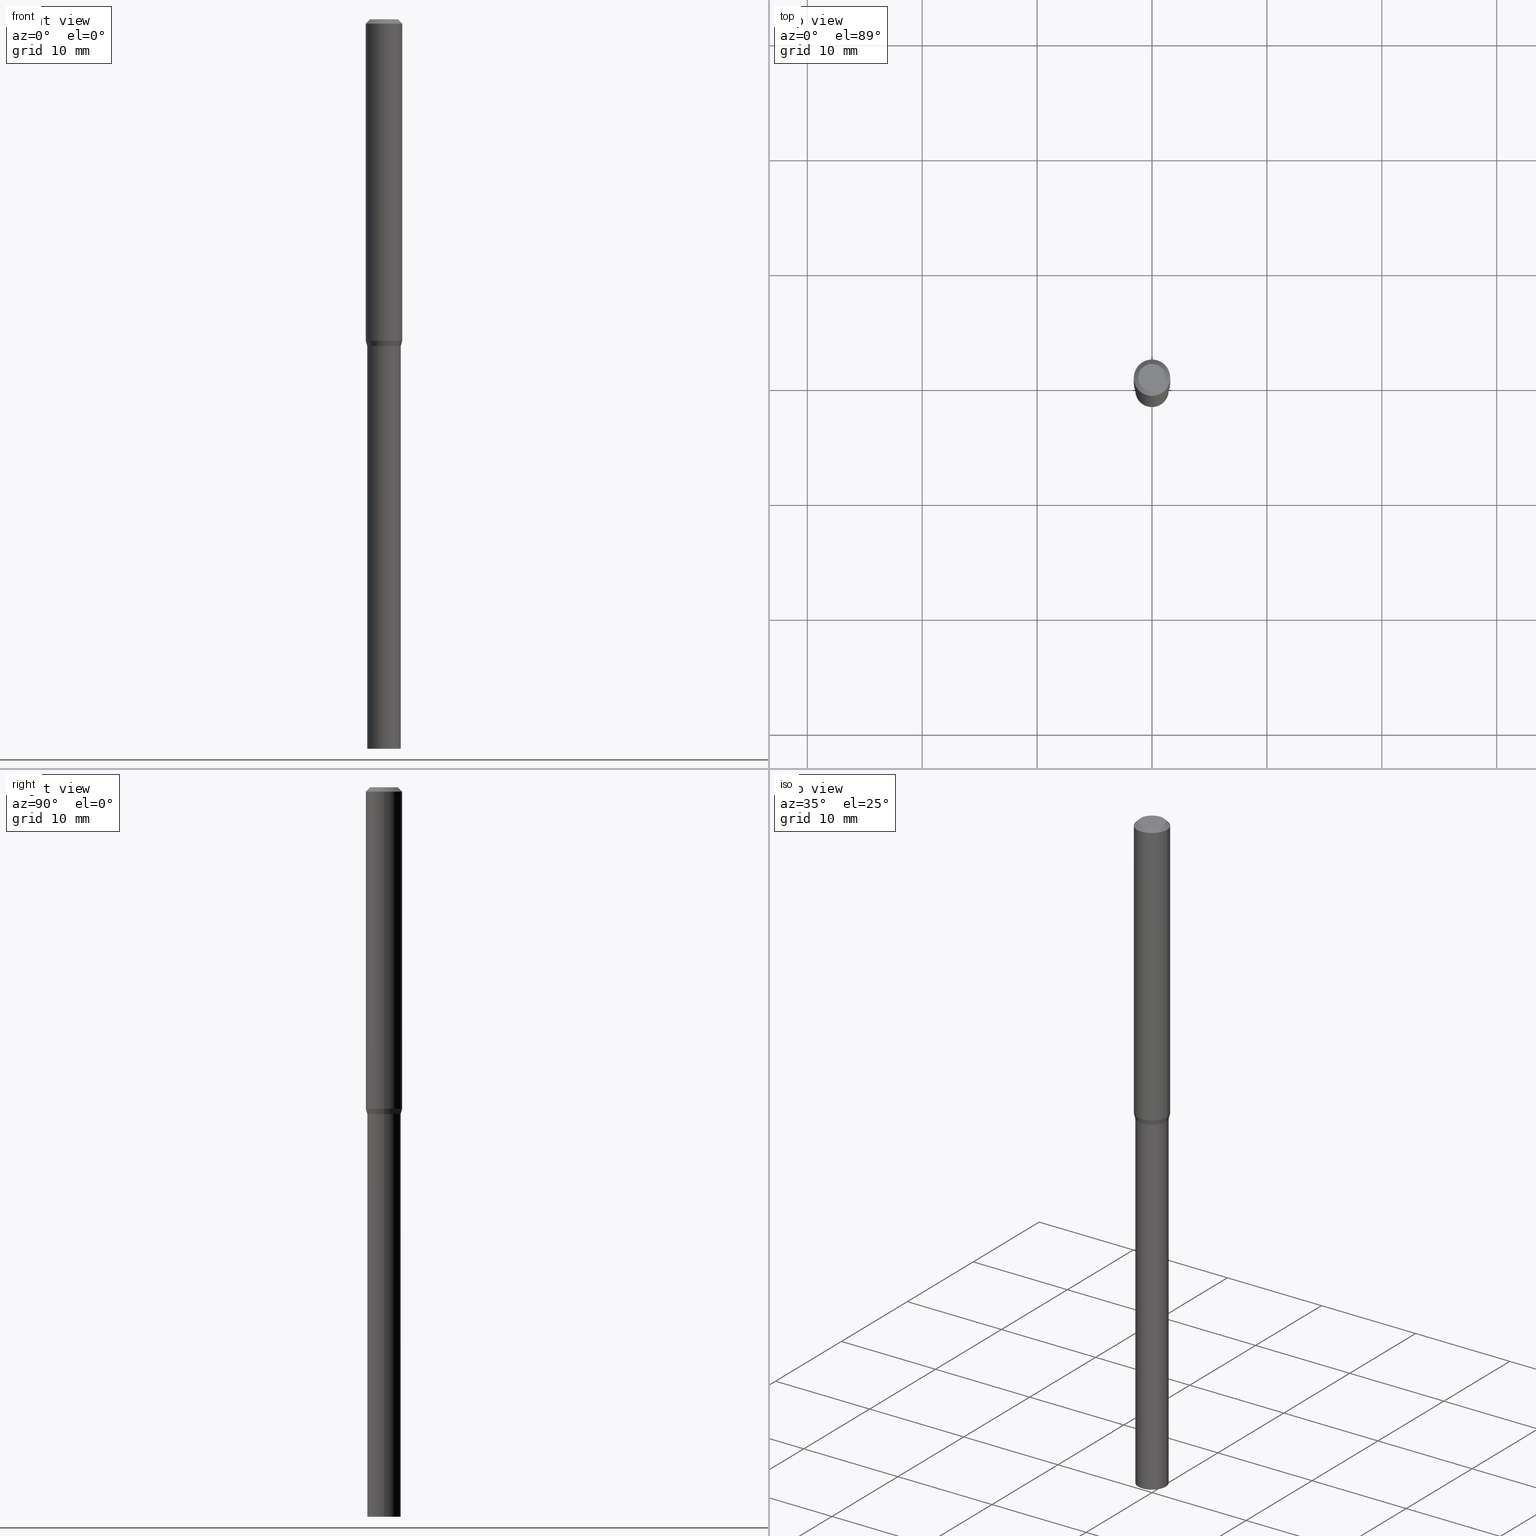
[diagram: canonical four-view strip — front | top / right | iso, engineering-drawing reading convention]
A machine part, canonical four-view strip (front | top / right | iso — engineering-drawing reading convention). The complete STEP part file that produces these views, byte-faithful:
ISO-10303-21;
HEADER;
FILE_DESCRIPTION (( 'STEP AP203' ),
    '1' );
FILE_NAME ('01309.STEP',
    '2024-03-20T01:21:07',
    ( '' ),
    ( '' ),
    'SwSTEP 2.0',
    'SolidWorks 2023',
    '' );
FILE_SCHEMA (( 'CONFIG_CONTROL_DESIGN' ));
ENDSEC;

DATA;
#1 = CARTESIAN_POINT ( 'NONE',  ( 0.05750000000000000250, -4.311979453471284209E-15, -1.120000000000000329 ) ) ;
#2 = CARTESIAN_POINT ( 'NONE',  ( 3.668203209277705088E-31, -5.237222008264718399E-17, -0.01499999999999999944 ) ) ;
#3 = DATE_AND_TIME ( #72, #363 ) ;
#4 = DIRECTION ( 'NONE',  ( 0.000000000000000000, 0.000000000000000000, 1.000000000000000000 ) ) ;
#5 = DIRECTION ( 'NONE',  ( -2.445468806185136877E-29, 3.491481338843145188E-15, 1.000000000000000000 ) ) ;
#6 = CARTESIAN_POINT ( 'NONE',  ( 6.113672015462842613E-29, -8.728703347107864943E-15, -2.500000000000000000 ) ) ;
#7 = CARTESIAN_POINT ( 'NONE',  ( -0.05750000000000000250, -5.911019150244036990E-15, -1.120000000000000329 ) ) ;
#8 = EDGE_CURVE ( 'NONE', #282, #103, #243, .T. ) ;
#9 = CARTESIAN_POINT ( 'NONE',  ( 2.738925062927354020E-29, -3.910459099504324188E-15, -1.120000000000000329 ) ) ;
#10 = VECTOR ( 'NONE', #343, 39.37007874015748143 ) ;
#11 = CARTESIAN_POINT ( 'NONE',  ( 3.668203209277705088E-31, -5.237222008264718399E-17, -0.01499999999999999944 ) ) ;
#12 = CARTESIAN_POINT ( 'NONE',  ( -0.05750000000000005801, -3.501897026442265824E-15, -1.120000000000000329 ) ) ;
#13 = EDGE_CURVE ( 'NONE', #244, #164, #320, .T. ) ;
#14 = CALENDAR_DATE ( 2024, 19, 3 ) ;
#15 = APPLICATION_CONTEXT ( 'configuration controlled 3d designs of mechanical parts and assemblies' ) ;
#16 = ORIENTED_EDGE ( 'NONE', *, *, #230, .F. ) ;
#17 = ORIENTED_EDGE ( 'NONE', *, *, #66, .F. ) ;
#18 = CC_DESIGN_DATE_AND_TIME_ASSIGNMENT ( #299, #365, ( #277 ) ) ;
#19 = VERTEX_POINT ( 'NONE', #454 ) ;
#20 = ORIENTED_EDGE ( 'NONE', *, *, #51, .F. ) ;
#21 = CARTESIAN_POINT ( 'NONE',  ( 2.738925062927354020E-29, -3.910459099504324188E-15, -1.120000000000000329 ) ) ;
#22 = EDGE_LOOP ( 'NONE', ( #248, #134, #64, #318 ) ) ;
#23 = ADVANCED_FACE ( 'NONE', ( #298 ), #36, .T. ) ;
#24 = ORIENTED_EDGE ( 'NONE', *, *, #357, .F. ) ;
#25 = APPROVAL_DATE_TIME ( #3, #268 ) ;
#26 = AXIS2_PLACEMENT_3D ( 'NONE', #65, #423, #301 ) ;
#27 = LOCAL_TIME ( 21, 21, 7.000000000000000000, #144 ) ;
#28 = CARTESIAN_POINT ( 'NONE',  ( -0.05700000000000000205, -3.505449740121067117E-15, -1.120000000000000329 ) ) ;
#29 = PERSON_AND_ORGANIZATION ( #342, #265 ) ;
#30 = PERSON_AND_ORGANIZATION_ROLE ( 'design_owner' ) ;
#31 = FACE_OUTER_BOUND ( 'NONE', #59, .T. ) ;
#32 = PLANE ( 'NONE',  #125 ) ;
#33 = CYLINDRICAL_SURFACE ( 'NONE', #420, 0.05750000000000000250 ) ;
#34 = APPROVAL_ROLE ( '' ) ;
#35 = FACE_OUTER_BOUND ( 'NONE', #362, .T. ) ;
#36 = CONICAL_SURFACE ( 'NONE', #308, 0.05700000000000000205, 0.7853981633974739252 ) ;
#37 = CIRCLE ( 'NONE', #233, 0.05750000000000000250 ) ;
#38 = CARTESIAN_POINT ( 'NONE',  ( 0.05750000000000005801, -4.311979453471284998E-15, -1.120000000000000329 ) ) ;
#39 = COORDINATED_UNIVERSAL_TIME_OFFSET ( 5, 0, .BEHIND. ) ;
#40 = DIRECTION ( 'NONE',  ( 1.000000000000000000, -6.982962677686266711E-15, 0.000000000000000000 ) ) ;
#41 = CYLINDRICAL_SURFACE ( 'NONE', #421, 0.05750000000000000250 ) ;
#42 = APPLICATION_CONTEXT ( 'configuration controlled 3d designs of mechanical parts and assemblies' ) ;
#43 = DIRECTION ( 'NONE',  ( -2.445468806185136597E-29, 3.491481338843145583E-15, 1.000000000000000000 ) ) ;
#44 = LINE ( 'NONE', #82, #338 ) ;
#45 = LINE ( 'NONE', #270, #108 ) ;
#46 = ADVANCED_FACE ( 'NONE', ( #284 ), #33, .T. ) ;
#47 = DATE_AND_TIME ( #14, #355 ) ;
#48 = AXIS2_PLACEMENT_3D ( 'NONE', #432, #456, #367 ) ;
#49 = CARTESIAN_POINT ( 'NONE',  ( 0.000000000000000000, 0.000000000000000000, 0.000000000000000000 ) ) ;
#50 = AXIS2_PLACEMENT_3D ( 'NONE', #55, #340, #375 ) ;
#51 = EDGE_CURVE ( 'NONE', #19, #459, #69, .T. ) ;
#52 = DIRECTION ( 'NONE',  ( 1.000000000000000000, -6.982962677686266711E-15, 4.876176775795935793E-29 ) ) ;
#53 = CARTESIAN_POINT ( 'NONE',  ( -0.06250000000000000000, -3.401217960903056063E-15, -1.101339745962156336 ) ) ;
#54 = FACE_OUTER_BOUND ( 'NONE', #451, .T. ) ;
#55 = CARTESIAN_POINT ( 'NONE',  ( 2.738925062927354020E-29, -3.910459099504324188E-15, -1.120000000000000329 ) ) ;
#56 = APPROVAL_DATE_TIME ( #47, #391 ) ;
#57 = APPROVAL_PERSON_ORGANIZATION ( #465, #405, #34 ) ;
#58 = EDGE_CURVE ( 'NONE', #280, #315, #399, .T. ) ;
#59 = EDGE_LOOP ( 'NONE', ( #359, #175 ) ) ;
#60 = LINE ( 'NONE', #322, #91 ) ;
#61 = ORIENTED_EDGE ( 'NONE', *, *, #196, .F. ) ;
#62 = EDGE_LOOP ( 'NONE', ( #16, #20, #147, #222 ) ) ;
#63 = AXIS2_PLACEMENT_3D ( 'NONE', #166, #208, #447 ) ;
#64 = ORIENTED_EDGE ( 'NONE', *, *, #415, .F. ) ;
#65 = CARTESIAN_POINT ( 'NONE',  ( 6.113672015462842613E-29, -8.728703347107864943E-15, -2.500000000000000000 ) ) ;
#66 = EDGE_CURVE ( 'NONE', #103, #282, #197, .T. ) ;
#67 = VERTEX_POINT ( 'NONE', #70 ) ;
#68 = CARTESIAN_POINT ( 'NONE',  ( 2.738925062927354020E-29, -3.910459099504324188E-15, -1.120000000000000329 ) ) ;
#69 = CIRCLE ( 'NONE', #337, 0.04749999999999999362 ) ;
#70 = CARTESIAN_POINT ( 'NONE',  ( -0.05750000000000000250, -5.911019150244036990E-15, -2.500000000000000000 ) ) ;
#71 = ADVANCED_FACE ( 'NONE', ( #400 ), #461, .T. ) ;
#72 = CALENDAR_DATE ( 2024, 19, 3 ) ;
#73 = DIRECTION ( 'NONE',  ( 1.000000000000000000, 0.000000000000000000, 0.000000000000000000 ) ) ;
#74 = ORIENTED_EDGE ( 'NONE', *, *, #364, .T. ) ;
#75 = CARTESIAN_POINT ( 'NONE',  ( 0.000000000000000000, 0.000000000000000000, 0.000000000000000000 ) ) ;
#76 = DIRECTION ( 'NONE',  ( 1.000000000000000000, -6.982962677686265922E-15, 4.876176775795935232E-29 ) ) ;
#77 = DIRECTION ( 'NONE',  ( -0.7071067811865452413, 2.468850131082233000E-15, -0.7071067811865497932 ) ) ;
#78 = CONICAL_SURFACE ( 'NONE', #394, 0.05750000000000005801, 0.2617993877991506846 ) ;
#79 = CARTESIAN_POINT ( 'NONE',  ( 0.05750000000000005801, -4.310233712801862705E-15, -1.119500000000000384 ) ) ;
#80 = EDGE_CURVE ( 'NONE', #67, #98, #182, .T. ) ;
#81 = DIMENSIONAL_EXPONENTS ( 1.000000000000000000, 0.000000000000000000, 0.000000000000000000, 0.000000000000000000, 0.000000000000000000, 0.000000000000000000, 0.000000000000000000 ) ;
#82 = CARTESIAN_POINT ( 'NONE',  ( 0.05750000000000000250, -4.015203539669603161E-16, 2.803801646082662941E-30 ) ) ;
#83 = APPROVAL_STATUS ( 'not_yet_approved' ) ;
#84 = FACE_OUTER_BOUND ( 'NONE', #279, .T. ) ;
#85 = CARTESIAN_POINT ( 'NONE',  ( 0.06250000000000000000, -4.888073874380388472E-16, -0.01499999999999999944 ) ) ;
#86 = AXIS2_PLACEMENT_3D ( 'NONE', #417, #247, #219 ) ;
#87 = EDGE_CURVE ( 'NONE', #427, #315, #406, .T. ) ;
#88 = DIRECTION ( 'NONE',  ( 2.445468806185136597E-29, -3.491481338843145583E-15, -1.000000000000000000 ) ) ;
#89 = ADVANCED_FACE ( 'NONE', ( #31 ), #325, .F. ) ;
#90 = CIRCLE ( 'NONE', #361, 0.05750000000000005801 ) ;
#91 = VECTOR ( 'NONE', #411, 39.37007874015748143 ) ;
#92 = CIRCLE ( 'NONE', #136, 0.05750000000000000250 ) ;
#93 = ORIENTED_EDGE ( 'NONE', *, *, #165, .F. ) ;
#94 = EDGE_LOOP ( 'NONE', ( #96, #207, #369, #387 ) ) ;
#95 = CARTESIAN_POINT ( 'NONE',  ( 2.738925062927354020E-29, -3.910459099504324188E-15, -1.120000000000000329 ) ) ;
#96 = ORIENTED_EDGE ( 'NONE', *, *, #172, .F. ) ;
#97 = ADVANCED_FACE ( 'NONE', ( #54 ), #193, .F. ) ;
#98 = VERTEX_POINT ( 'NONE', #7 ) ;
#99 = DIRECTION ( 'NONE',  ( -2.445468806185136597E-29, 3.491481338843145583E-15, 1.000000000000000000 ) ) ;
#100 = DIRECTION ( 'NONE',  ( -2.445468806185136877E-29, 3.491481338843145188E-15, 1.000000000000000000 ) ) ;
#101 = CARTESIAN_POINT ( 'NONE',  ( -0.05700000000000000205, -3.502800512946955522E-15, -1.120000000000000329 ) ) ;
#102 = CC_DESIGN_PERSON_AND_ORGANIZATION_ASSIGNMENT ( #242, #443, ( #277 ) ) ;
#103 = VERTEX_POINT ( 'NONE', #85 ) ;
#104 = COORDINATED_UNIVERSAL_TIME_OFFSET ( 5, 0, .BEHIND. ) ;
#105 = DIRECTION ( 'NONE',  ( 2.438088387897960049E-29, -3.491481338843145188E-15, -1.000000000000000000 ) ) ;
#106 = CIRCLE ( 'NONE', #377, 0.05700000000000000205 ) ;
#107 = ADVANCED_BREP_SHAPE_REPRESENTATION ( '01309', ( #418, #114, #293 ), #171 ) ;
#108 = VECTOR ( 'NONE', #305, 39.37007874015748143 ) ;
#109 = ORIENTED_EDGE ( 'NONE', *, *, #311, .T. ) ;
#110 = PERSON_AND_ORGANIZATION ( #342, #265 ) ;
#111 = APPLICATION_PROTOCOL_DEFINITION ( 'international standard', 'config_control_design', 1994, #42 ) ;
#112 = CALENDAR_DATE ( 2024, 19, 3 ) ;
#113 = ORIENTED_EDGE ( 'NONE', *, *, #317, .T. ) ;
#114 = MANIFOLD_SOLID_BREP ( 'Body-Move/Copy2[2]', #124 ) ;
#115 = PERSON_AND_ORGANIZATION ( #342, #265 ) ;
#116 = EDGE_CURVE ( 'NONE', #280, #126, #106, .T. ) ;
#117 = FACE_OUTER_BOUND ( 'NONE', #353, .T. ) ;
#118 = DIRECTION ( 'NONE',  ( 1.000000000000000000, -6.982962677686265133E-15, 0.000000000000000000 ) ) ;
#119 = DIRECTION ( 'NONE',  ( 1.000000000000000000, -6.982962677686256455E-15, 0.000000000000000000 ) ) ;
#120 = LINE ( 'NONE', #348, #321 ) ;
#121 = CARTESIAN_POINT ( 'NONE',  ( 0.000000000000000000, 0.000000000000000000, 0.000000000000000000 ) ) ;
#122 = ADVANCED_FACE ( 'NONE', ( #154 ), #177, .T. ) ;
#123 = CARTESIAN_POINT ( 'NONE',  ( 0.000000000000000000, 0.000000000000000000, 0.000000000000000000 ) ) ;
#124 = CLOSED_SHELL ( 'NONE', ( #97, #23, #324, #334, #204, #426, #412, #122, #440, #386, #71, #139 ) ) ;
#125 = AXIS2_PLACEMENT_3D ( 'NONE', #331, #105, #228 ) ;
#126 = VERTEX_POINT ( 'NONE', #160 ) ;
#127 = ORIENTED_EDGE ( 'NONE', *, *, #311, .F. ) ;
#128 = CIRCLE ( 'NONE', #63, 0.06250000000000000000 ) ;
#129 = ORIENTED_EDGE ( 'NONE', *, *, #275, .F. ) ;
#130 = DIRECTION ( 'NONE',  ( -2.445468806185136597E-29, 3.491481338843145583E-15, 1.000000000000000000 ) ) ;
#131 = CC_DESIGN_PERSON_AND_ORGANIZATION_ASSIGNMENT ( #110, #259, ( #237 ) ) ;
#132 = ORIENTED_EDGE ( 'NONE', *, *, #239, .T. ) ;
#133 = DIRECTION ( 'NONE',  ( 1.000000000000000000, -6.982962677686266711E-15, 0.000000000000000000 ) ) ;
#134 = ORIENTED_EDGE ( 'NONE', *, *, #80, .T. ) ;
#135 = VECTOR ( 'NONE', #220, 39.37007874015748143 ) ;
#136 = AXIS2_PLACEMENT_3D ( 'NONE', #425, #285, #145 ) ;
#137 = ORIENTED_EDGE ( 'NONE', *, *, #224, .F. ) ;
#138 = CARTESIAN_POINT ( 'NONE',  ( 0.05750000000000005801, -4.015203539669607599E-16, 2.803801646082666094E-30 ) ) ;
#139 = ADVANCED_FACE ( 'NONE', ( #376 ), #374, .F. ) ;
#140 = DIRECTION ( 'NONE',  ( -2.445468806185136597E-29, 3.491481338843145583E-15, 1.000000000000000000 ) ) ;
#141 = PERSON_AND_ORGANIZATION_ROLE ( 'creator' ) ;
#142 = PERSON_AND_ORGANIZATION ( #342, #265 ) ;
#143 = DIRECTION ( 'NONE',  ( -2.445468806185136597E-29, 3.491481338843145583E-15, 1.000000000000000000 ) ) ;
#144 = COORDINATED_UNIVERSAL_TIME_OFFSET ( 5, 0, .BEHIND. ) ;
#145 = DIRECTION ( 'NONE',  ( 1.000000000000000000, -6.982962677686265133E-15, 0.000000000000000000 ) ) ;
#146 = LOCAL_TIME ( 21, 21, 7.000000000000000000, #390 ) ;
#147 = ORIENTED_EDGE ( 'NONE', *, *, #462, .T. ) ;
#148 = CARTESIAN_POINT ( 'NONE',  ( 2.738925062927354020E-29, -3.910459099504324188E-15, -1.120000000000000329 ) ) ;
#149 = DIRECTION ( 'NONE',  ( 0.2588190451025219607, 1.565188264969617432E-15, 0.9659258262890679791 ) ) ;
#150 = EDGE_CURVE ( 'NONE', #126, #280, #327, .T. ) ;
#151 = DATE_TIME_ROLE ( 'classification_date' ) ;
#152 = APPLICATION_PROTOCOL_DEFINITION ( 'international standard', 'config_control_design', 1994, #15 ) ;
#153 = PRODUCT_DEFINITION_SHAPE ( 'NONE', 'NONE',  #277 ) ;
#154 = FACE_OUTER_BOUND ( 'NONE', #62, .T. ) ;
#155 = DIRECTION ( 'NONE',  ( -2.438088387897960049E-29, 3.491481338843145188E-15, 1.000000000000000000 ) ) ;
#156 = CC_DESIGN_APPROVAL ( #268, ( #237 ) ) ;
#157 = EDGE_CURVE ( 'NONE', #173, #67, #236, .T. ) ;
#158 = PLANE ( 'NONE',  #446 ) ;
#159 = DIRECTION ( 'NONE',  ( -2.445468806185136597E-29, 3.491481338843145583E-15, 1.000000000000000000 ) ) ;
#160 = CARTESIAN_POINT ( 'NONE',  ( 0.05700000000000000205, -4.308487972132441202E-15, -1.120000000000000329 ) ) ;
#161 = APPROVAL_ROLE ( '' ) ;
#162 = DIRECTION ( 'NONE',  ( 1.000000000000000000, -6.982962677686265922E-15, 4.876176775795935793E-29 ) ) ;
#163 = DIRECTION ( 'NONE',  ( 0.7071067811865656694, -2.468850131082446387E-15, 0.7071067811865294761 ) ) ;
#164 = VERTEX_POINT ( 'NONE', #450 ) ;
#165 = EDGE_CURVE ( 'NONE', #278, #203, #254, .T. ) ;
#166 = CARTESIAN_POINT ( 'NONE',  ( 2.693291993762315998E-29, -3.845307170753119074E-15, -1.101339745962156336 ) ) ;
#167 = ORIENTED_EDGE ( 'NONE', *, *, #58, .F. ) ;
#168 = PRODUCT_RELATED_PRODUCT_CATEGORY ( 'detail', '', ( #266 ) ) ;
#169 = AXIS2_PLACEMENT_3D ( 'NONE', #274, #267, #118 ) ;
#170 = ORIENTED_EDGE ( 'NONE', *, *, #230, .T. ) ;
#171 =( GEOMETRIC_REPRESENTATION_CONTEXT ( 3 ) GLOBAL_UNCERTAINTY_ASSIGNED_CONTEXT ( ( #246 ) ) GLOBAL_UNIT_ASSIGNED_CONTEXT ( ( #460, #466, #194 ) ) REPRESENTATION_CONTEXT ( 'NONE', 'WORKASPACE' ) );
#172 = EDGE_CURVE ( 'NONE', #278, #315, #60, .T. ) ;
#173 = VERTEX_POINT ( 'NONE', #441 ) ;
#174 = ORIENTED_EDGE ( 'NONE', *, *, #87, .F. ) ;
#175 = ORIENTED_EDGE ( 'NONE', *, *, #317, .F. ) ;
#176 = SHAPE_DEFINITION_REPRESENTATION ( #153, #107 ) ;
#177 = CONICAL_SURFACE ( 'NONE', #272, 0.06250000000000000000, 0.7853981633974450594 ) ;
#178 = CC_DESIGN_APPROVAL ( #405, ( #439 ) ) ;
#179 = DIRECTION ( 'NONE',  ( 1.000000000000000000, -6.982962677686266711E-15, 0.000000000000000000 ) ) ;
#180 = SECURITY_CLASSIFICATION_LEVEL ( 'unclassified' ) ;
#181 = CARTESIAN_POINT ( 'NONE',  ( 2.738925062927354020E-29, -3.910459099504324188E-15, -1.120000000000000329 ) ) ;
#182 = LINE ( 'NONE', #184, #135 ) ;
#183 = CARTESIAN_POINT ( 'NONE',  ( -0.05750000000000005801, -3.500151285772844715E-15, -1.119500000000000384 ) ) ;
#184 = CARTESIAN_POINT ( 'NONE',  ( -0.05750000000000000250, 4.085620730620576246E-16, -2.828387676896570712E-30 ) ) ;
#185 = CARTESIAN_POINT ( 'NONE',  ( 4.015203539669877291E-16, 0.05749999999999608896, -1.120000000000000551 ) ) ;
#186 = AXIS2_PLACEMENT_3D ( 'NONE', #181, #43, #40 ) ;
#187 = CC_DESIGN_PERSON_AND_ORGANIZATION_ASSIGNMENT ( #366, #30, ( #266 ) ) ;
#188 = ORIENTED_EDGE ( 'NONE', *, *, #258, .F. ) ;
#189 = DATE_AND_TIME ( #112, #385 ) ;
#190 = DIRECTION ( 'NONE',  ( -2.445468806185136597E-29, 3.491481338843145583E-15, 1.000000000000000000 ) ) ;
#191 = CARTESIAN_POINT ( 'NONE',  ( -0.05750000000000005801, -3.451557493672660747E-15, -1.120000000000000329 ) ) ;
#192 = LINE ( 'NONE', #332, #212 ) ;
#193 = CYLINDRICAL_SURFACE ( 'NONE', #384, 0.05750000000000005801 ) ;
#194 =( NAMED_UNIT ( * ) SI_UNIT ( $, .STERADIAN. ) SOLID_ANGLE_UNIT ( ) );
#195 = DIRECTION ( 'NONE',  ( -2.445468806185136877E-29, 3.491481338843145188E-15, 1.000000000000000000 ) ) ;
#196 = EDGE_CURVE ( 'NONE', #315, #427, #90, .T. ) ;
#197 = CIRCLE ( 'NONE', #252, 0.06250000000000000000 ) ;
#198 = CARTESIAN_POINT ( 'NONE',  ( 0.06250000000000000000, -4.364351673553916694E-16, 3.047610484872459871E-30 ) ) ;
#199 = DIRECTION ( 'NONE',  ( 1.000000000000000000, -6.982962677686265133E-15, 0.000000000000000000 ) ) ;
#200 = COORDINATED_UNIVERSAL_TIME_OFFSET ( 5, 0, .BEHIND. ) ;
#201 = DIRECTION ( 'NONE',  ( 1.000000000000000000, -6.982962677686262766E-15, 0.000000000000000000 ) ) ;
#202 = DIRECTION ( 'NONE',  ( -2.445468806185136597E-29, 3.491481338843145583E-15, 1.000000000000000000 ) ) ;
#203 = VERTEX_POINT ( 'NONE', #53 ) ;
#204 = ADVANCED_FACE ( 'NONE', ( #84 ), #429, .T. ) ;
#205 = AXIS2_PLACEMENT_3D ( 'NONE', #273, #88, #304 ) ;
#206 = ORIENTED_EDGE ( 'NONE', *, *, #116, .F. ) ;
#207 = ORIENTED_EDGE ( 'NONE', *, *, #455, .F. ) ;
#208 = DIRECTION ( 'NONE',  ( -2.445468806185136597E-29, 3.491481338843145583E-15, 1.000000000000000000 ) ) ;
#209 = ORIENTED_EDGE ( 'NONE', *, *, #51, .T. ) ;
#210 = VECTOR ( 'NONE', #149, 39.37007874015748143 ) ;
#211 = ORIENTED_EDGE ( 'NONE', *, *, #13, .T. ) ;
#212 = VECTOR ( 'NONE', #5, 39.37007874015748143 ) ;
#213 = ORIENTED_EDGE ( 'NONE', *, *, #462, .F. ) ;
#214 = CARTESIAN_POINT ( 'NONE',  ( -0.06250000000000000000, -1.504750485567820658E-15, -0.01499999999999999944 ) ) ;
#215 = CARTESIAN_POINT ( 'NONE',  ( 0.000000000000000000, 0.000000000000000000, 0.000000000000000000 ) ) ;
#216 = DIRECTION ( 'NONE',  ( 1.000000000000000000, -6.982962677686266711E-15, 0.000000000000000000 ) ) ;
#217 = CIRCLE ( 'NONE', #328, 0.05750000000000000250 ) ;
#218 = DIRECTION ( 'NONE',  ( 1.000000000000000000, -6.982962677686265922E-15, 4.876176775795935232E-29 ) ) ;
#219 = DIRECTION ( 'NONE',  ( 1.000000000000000000, -6.982962677686267499E-15, 4.884662768193073002E-29 ) ) ;
#220 = DIRECTION ( 'NONE',  ( -2.445468806185136877E-29, 3.491481338843145188E-15, 1.000000000000000000 ) ) ;
#221 = LENGTH_MEASURE_WITH_UNIT ( LENGTH_MEASURE( 0.02539999999999999897 ), #294 );
#222 = ORIENTED_EDGE ( 'NONE', *, *, #8, .T. ) ;
#223 = FACE_OUTER_BOUND ( 'NONE', #326, .T. ) ;
#224 = EDGE_CURVE ( 'NONE', #126, #427, #120, .T. ) ;
#225 = ORIENTED_EDGE ( 'NONE', *, *, #357, .T. ) ;
#226 = APPROVAL_STATUS ( 'not_yet_approved' ) ;
#227 = CONICAL_SURFACE ( 'NONE', #205, 0.06250000000000000000, 0.7853981633974450594 ) ;
#228 = DIRECTION ( 'NONE',  ( -1.000000000000000000, 6.982962677686265922E-15, -4.876176775795935793E-29 ) ) ;
#229 = DIRECTION ( 'NONE',  ( -2.445468806185136597E-29, 3.491481338843145583E-15, 1.000000000000000000 ) ) ;
#230 = EDGE_CURVE ( 'NONE', #459, #103, #45, .T. ) ;
#231 = DIRECTION ( 'NONE',  ( 1.000000000000000000, -6.982962677686265922E-15, 4.876176775795935793E-29 ) ) ;
#232 = DIRECTION ( 'NONE',  ( -1.000000000000000000, 6.982962677686266711E-15, 0.000000000000000000 ) ) ;
#233 = AXIS2_PLACEMENT_3D ( 'NONE', #95, #316, #329 ) ;
#234 = DIRECTION ( 'NONE',  ( -2.445468806185136597E-29, 3.491481338843145583E-15, 1.000000000000000000 ) ) ;
#235 = CC_DESIGN_DATE_AND_TIME_ASSIGNMENT ( #360, #151, ( #237 ) ) ;
#236 = CIRCLE ( 'NONE', #26, 0.05750000000000000250 ) ;
#237 = SECURITY_CLASSIFICATION ( '', '', #180 ) ;
#238 = DIRECTION ( 'NONE',  ( -2.445468806185136597E-29, 3.491481338843145583E-15, 1.000000000000000000 ) ) ;
#239 = EDGE_CURVE ( 'NONE', #278, #244, #407, .T. ) ;
#240 = ORIENTED_EDGE ( 'NONE', *, *, #13, .F. ) ;
#241 = ORIENTED_EDGE ( 'NONE', *, *, #165, .T. ) ;
#242 = PERSON_AND_ORGANIZATION ( #342, #265 ) ;
#243 = CIRCLE ( 'NONE', #354, 0.06250000000000000000 ) ;
#244 = VERTEX_POINT ( 'NONE', #351 ) ;
#245 = CIRCLE ( 'NONE', #86, 0.04749999999999999362 ) ;
#246 = UNCERTAINTY_MEASURE_WITH_UNIT (LENGTH_MEASURE( 1.000000000000000082E-05 ), #460, 'distance_accuracy_value', 'NONE');
#247 = DIRECTION ( 'NONE',  ( -2.445468806185136597E-29, 3.491481338843145583E-15, 1.000000000000000000 ) ) ;
#248 = ORIENTED_EDGE ( 'NONE', *, *, #157, .T. ) ;
#249 = DIRECTION ( 'NONE',  ( 1.000000000000000000, -6.982962677686265133E-15, 0.000000000000000000 ) ) ;
#250 = CARTESIAN_POINT ( 'NONE',  ( -0.06250000000000000000, 3.840629472727444916E-16, -0.01499999999999999944 ) ) ;
#251 = DIRECTION ( 'NONE',  ( -2.445468806185136597E-29, 3.491481338843145583E-15, 1.000000000000000000 ) ) ;
#252 = AXIS2_PLACEMENT_3D ( 'NONE', #397, #256, #179 ) ;
#253 = CIRCLE ( 'NONE', #186, 0.05750000000000005801 ) ;
#254 = LINE ( 'NONE', #12, #302 ) ;
#255 = CARTESIAN_POINT ( 'NONE',  ( 0.04749999999999999362, -4.035134999187576651E-16, 9.929557176494579556E-17 ) ) ;
#256 = DIRECTION ( 'NONE',  ( -2.445468806185136597E-29, 3.491481338843145583E-15, 1.000000000000000000 ) ) ;
#257 = DIRECTION ( 'NONE',  ( -0.2588190451025219607, 5.211531920934553408E-15, 0.9659258262890679791 ) ) ;
#258 = EDGE_CURVE ( 'NONE', #203, #164, #128, .T. ) ;
#259 = PERSON_AND_ORGANIZATION_ROLE ( 'classification_officer' ) ;
#260 = DIRECTION ( 'NONE',  ( -1.000000000000000000, 6.982962677686265922E-15, -4.876176775795935793E-29 ) ) ;
#261 = ORIENTED_EDGE ( 'NONE', *, *, #372, .T. ) ;
#262 = FACE_OUTER_BOUND ( 'NONE', #414, .T. ) ;
#263 = EDGE_LOOP ( 'NONE', ( #167, #416, #464, #61 ) ) ;
#264 = CYLINDRICAL_SURFACE ( 'NONE', #437, 0.06250000000000000000 ) ;
#265 = ORGANIZATION ( 'UNSPECIFIED', 'UNSPECIFIED', '' ) ;
#266 = PRODUCT ( '01309', '01309', '', ( #335 ) ) ;
#267 = DIRECTION ( 'NONE',  ( -2.445468806185136597E-29, 3.491481338843145583E-15, 1.000000000000000000 ) ) ;
#268 = APPROVAL ( #226, 'UNSPECIFIED' ) ;
#269 = DIRECTION ( 'NONE',  ( -2.445468806185136597E-29, 3.491481338843145583E-15, 1.000000000000000000 ) ) ;
#270 = CARTESIAN_POINT ( 'NONE',  ( 0.06250000000000000000, -4.811533449433679005E-16, -0.01499999999999999944 ) ) ;
#271 = DIRECTION ( 'NONE',  ( 1.000000000000000000, -6.982962677686266711E-15, 4.876176775795936353E-29 ) ) ;
#272 = AXIS2_PLACEMENT_3D ( 'NONE', #11, #345, #232 ) ;
#273 = CARTESIAN_POINT ( 'NONE',  ( 3.668203209277705088E-31, -5.237222008264718399E-17, -0.01499999999999999944 ) ) ;
#274 = CARTESIAN_POINT ( 'NONE',  ( 2.738925062927354020E-29, -3.910459099504324188E-15, -1.120000000000000329 ) ) ;
#275 = EDGE_CURVE ( 'NONE', #98, #276, #37, .T. ) ;
#276 = VERTEX_POINT ( 'NONE', #1 ) ;
#277 = PRODUCT_DEFINITION ( 'UNKNOWN', '', #439, #290 ) ;
#278 = VERTEX_POINT ( 'NONE', #191 ) ;
#279 = EDGE_LOOP ( 'NONE', ( #389, #241, #24, #240 ) ) ;
#280 = VERTEX_POINT ( 'NONE', #101 ) ;
#281 = VECTOR ( 'NONE', #430, 39.37007874015748143 ) ;
#282 = VERTEX_POINT ( 'NONE', #214 ) ;
#283 = AXIS2_PLACEMENT_3D ( 'NONE', #435, #234, #52 ) ;
#284 = FACE_OUTER_BOUND ( 'NONE', #449, .T. ) ;
#285 = DIRECTION ( 'NONE',  ( -2.445468806185136597E-29, 3.491481338843145583E-15, 1.000000000000000000 ) ) ;
#286 = DIRECTION ( 'NONE',  ( 1.000000000000000000, -6.982962677686267499E-15, 4.884662768193073002E-29 ) ) ;
#287 = APPROVAL_ROLE ( '' ) ;
#288 = DIRECTION ( 'NONE',  ( -2.445468806185136597E-29, 3.491481338843145583E-15, 1.000000000000000000 ) ) ;
#289 = ADVANCED_FACE ( 'NONE', ( #392 ), #41, .T. ) ;
#290 = DESIGN_CONTEXT ( 'detailed design', #42, 'design' ) ;
#291 = CARTESIAN_POINT ( 'NONE',  ( 6.194428952736783458E-29, -8.613054816532157721E-15, -2.500000000000000000 ) ) ;
#292 = APPROVAL_STATUS ( 'not_yet_approved' ) ;
#293 = AXIS2_PLACEMENT_3D ( 'NONE', #371, #4, #73 ) ;
#294 =( LENGTH_UNIT ( ) NAMED_UNIT ( * ) SI_UNIT ( $, .METRE. ) );
#295 = DIRECTION ( 'NONE',  ( -2.445468806185136597E-29, 3.491481338843145583E-15, 1.000000000000000000 ) ) ;
#296 = CALENDAR_DATE ( 2024, 19, 3 ) ;
#297 = DIRECTION ( 'NONE',  ( 1.000000000000000000, -6.982962677686266711E-15, 0.000000000000000000 ) ) ;
#298 = FACE_OUTER_BOUND ( 'NONE', #330, .T. ) ;
#299 = DATE_AND_TIME ( #296, #146 ) ;
#300 = LINE ( 'NONE', #250, #313 ) ;
#301 = DIRECTION ( 'NONE',  ( 1.000000000000000000, -6.982962677686256455E-15, 0.000000000000000000 ) ) ;
#302 = VECTOR ( 'NONE', #257, 39.37007874015748143 ) ;
#303 = AXIS2_PLACEMENT_3D ( 'NONE', #21, #238, #133 ) ;
#304 = DIRECTION ( 'NONE',  ( -1.000000000000000000, 6.982962677686266711E-15, 0.000000000000000000 ) ) ;
#305 = DIRECTION ( 'NONE',  ( 0.7071067811865452413, -7.319954787623248157E-15, -0.7071067811865497932 ) ) ;
#306 = DIRECTION ( 'NONE',  ( 1.000000000000000000, -6.982962677686266711E-15, 4.876176775795936353E-29 ) ) ;
#307 = CC_DESIGN_PERSON_AND_ORGANIZATION_ASSIGNMENT ( #401, #141, ( #439 ) ) ;
#308 = AXIS2_PLACEMENT_3D ( 'NONE', #68, #99, #249 ) ;
#309 = AXIS2_PLACEMENT_3D ( 'NONE', #185, #404, #260 ) ;
#310 = EDGE_LOOP ( 'NONE', ( #314, #206 ) ) ;
#311 = EDGE_CURVE ( 'NONE', #459, #19, #245, .T. ) ;
#312 = ORIENTED_EDGE ( 'NONE', *, *, #196, .T. ) ;
#313 = VECTOR ( 'NONE', #77, 39.37007874015748143 ) ;
#314 = ORIENTED_EDGE ( 'NONE', *, *, #150, .F. ) ;
#315 = VERTEX_POINT ( 'NONE', #183 ) ;
#316 = DIRECTION ( 'NONE',  ( -2.445468806185136597E-29, 3.491481338843145583E-15, 1.000000000000000000 ) ) ;
#317 = EDGE_CURVE ( 'NONE', #67, #173, #217, .T. ) ;
#318 = ORIENTED_EDGE ( 'NONE', *, *, #378, .F. ) ;
#319 = AXIS2_PLACEMENT_3D ( 'NONE', #49, #159, #306 ) ;
#320 = LINE ( 'NONE', #38, #210 ) ;
#321 = VECTOR ( 'NONE', #163, 39.37007874015748143 ) ;
#322 = CARTESIAN_POINT ( 'NONE',  ( -0.05750000000000005801, 4.085620730620580191E-16, -2.828387676896573865E-30 ) ) ;
#323 = CARTESIAN_POINT ( 'NONE',  ( 2.738925062927354020E-29, -3.910459099504324188E-15, -1.120000000000000329 ) ) ;
#324 = ADVANCED_FACE ( 'NONE', ( #341 ), #227, .T. ) ;
#325 = PLANE ( 'NONE',  #452 ) ;
#326 = EDGE_LOOP ( 'NONE', ( #209, #109 ) ) ;
#327 = CIRCLE ( 'NONE', #169, 0.05700000000000000205 ) ;
#328 = AXIS2_PLACEMENT_3D ( 'NONE', #6, #269, #119 ) ;
#329 = DIRECTION ( 'NONE',  ( 1.000000000000000000, -6.982962677686265133E-15, 0.000000000000000000 ) ) ;
#330 = EDGE_LOOP ( 'NONE', ( #358, #395, #174, #137 ) ) ;
#331 = CARTESIAN_POINT ( 'NONE',  ( 3.316907271900976096E-16, 0.04749999999999999362, -1.161975777125777867E-16 ) ) ;
#332 = CARTESIAN_POINT ( 'NONE',  ( -0.06250000000000000000, 4.440892098500626162E-16, -3.074334431409316114E-30 ) ) ;
#333 = DIRECTION ( 'NONE',  ( -2.445468806185136597E-29, 3.491481338843145583E-15, 1.000000000000000000 ) ) ;
#334 = ADVANCED_FACE ( 'NONE', ( #117 ), #408, .T. ) ;
#335 = MECHANICAL_CONTEXT ( 'NONE', #15, 'mechanical' ) ;
#336 = FACE_OUTER_BOUND ( 'NONE', #310, .T. ) ;
#337 = AXIS2_PLACEMENT_3D ( 'NONE', #424, #251, #286 ) ;
#338 = VECTOR ( 'NONE', #195, 39.37007874015748143 ) ;
#339 = LINE ( 'NONE', #198, #10 ) ;
#340 = DIRECTION ( 'NONE',  ( -2.445468806185136597E-29, 3.491481338843145583E-15, 1.000000000000000000 ) ) ;
#341 = FACE_OUTER_BOUND ( 'NONE', #419, .T. ) ;
#342 = PERSON ( 'UNSPECIFIED', 'UNSPECIFIED', 'UNSPECIFIED', ('UNSPECIFIED'), ('UNSPECIFIED'), ('UNSPECIFIED') ) ;
#343 = DIRECTION ( 'NONE',  ( -2.445468806185136877E-29, 3.491481338843145188E-15, 1.000000000000000000 ) ) ;
#344 = CARTESIAN_POINT ( 'NONE',  ( 2.737702328524261218E-29, -3.908713358834902685E-15, -1.119500000000000384 ) ) ;
#345 = DIRECTION ( 'NONE',  ( 2.445468806185136597E-29, -3.491481338843145583E-15, -1.000000000000000000 ) ) ;
#346 = ORIENTED_EDGE ( 'NONE', *, *, #8, .F. ) ;
#347 = CC_DESIGN_APPROVAL ( #391, ( #277 ) ) ;
#348 = CARTESIAN_POINT ( 'NONE',  ( 0.05700000000000000205, -4.308487972132441202E-15, -1.120000000000000329 ) ) ;
#349 = ORIENTED_EDGE ( 'NONE', *, *, #364, .F. ) ;
#350 = CC_DESIGN_SECURITY_CLASSIFICATION ( #237, ( #439 ) ) ;
#351 = CARTESIAN_POINT ( 'NONE',  ( 0.05750000000000005801, -4.311979453471284998E-15, -1.120000000000000329 ) ) ;
#352 = ORIENTED_EDGE ( 'NONE', *, *, #372, .F. ) ;
#353 = EDGE_LOOP ( 'NONE', ( #225, #261, #17, #349 ) ) ;
#354 = AXIS2_PLACEMENT_3D ( 'NONE', #2, #143, #216 ) ;
#355 = LOCAL_TIME ( 21, 21, 7.000000000000000000, #200 ) ;
#356 = ORIENTED_EDGE ( 'NONE', *, *, #172, .T. ) ;
#357 = EDGE_CURVE ( 'NONE', #164, #203, #453, .T. ) ;
#358 = ORIENTED_EDGE ( 'NONE', *, *, #150, .T. ) ;
#359 = ORIENTED_EDGE ( 'NONE', *, *, #157, .F. ) ;
#360 = DATE_AND_TIME ( #431, #27 ) ;
#361 = AXIS2_PLACEMENT_3D ( 'NONE', #344, #383, #380 ) ;
#362 = EDGE_LOOP ( 'NONE', ( #434, #422 ) ) ;
#363 = LOCAL_TIME ( 21, 21, 7.000000000000000000, #39 ) ;
#364 = EDGE_CURVE ( 'NONE', #164, #103, #339, .T. ) ;
#365 = DATE_TIME_ROLE ( 'creation_date' ) ;
#366 = PERSON_AND_ORGANIZATION ( #342, #265 ) ;
#367 = DIRECTION ( 'NONE',  ( 1.000000000000000000, -6.982962677686266711E-15, 0.000000000000000000 ) ) ;
#368 = DIRECTION ( 'NONE',  ( 1.000000000000000000, -6.982962677686265133E-15, 0.000000000000000000 ) ) ;
#369 = ORIENTED_EDGE ( 'NONE', *, *, #438, .T. ) ;
#370 = AXIS2_PLACEMENT_3D ( 'NONE', #382, #229, #201 ) ;
#371 = CARTESIAN_POINT ( 'NONE',  ( 0.000000000000000000, 0.000000000000000000, 0.000000000000000000 ) ) ;
#372 = EDGE_CURVE ( 'NONE', #203, #282, #192, .T. ) ;
#373 = LINE ( 'NONE', #138, #379 ) ;
#374 = CYLINDRICAL_SURFACE ( 'NONE', #319, 0.05750000000000005801 ) ;
#375 = DIRECTION ( 'NONE',  ( 1.000000000000000000, -6.982962677686266711E-15, 0.000000000000000000 ) ) ;
#376 = FACE_OUTER_BOUND ( 'NONE', #94, .T. ) ;
#377 = AXIS2_PLACEMENT_3D ( 'NONE', #381, #202, #199 ) ;
#378 = EDGE_CURVE ( 'NONE', #173, #276, #44, .T. ) ;
#379 = VECTOR ( 'NONE', #100, 39.37007874015748143 ) ;
#380 = DIRECTION ( 'NONE',  ( 1.000000000000000000, -6.982962677686266711E-15, 0.000000000000000000 ) ) ;
#381 = CARTESIAN_POINT ( 'NONE',  ( 2.738925062927354020E-29, -3.910459099504324188E-15, -1.120000000000000329 ) ) ;
#382 = CARTESIAN_POINT ( 'NONE',  ( 2.693291993762315998E-29, -3.845307170753119074E-15, -1.101339745962156336 ) ) ;
#383 = DIRECTION ( 'NONE',  ( -2.445468806185136597E-29, 3.491481338843145583E-15, 1.000000000000000000 ) ) ;
#384 = AXIS2_PLACEMENT_3D ( 'NONE', #121, #333, #271 ) ;
#385 = LOCAL_TIME ( 21, 21, 7.000000000000000000, #104 ) ;
#386 = ADVANCED_FACE ( 'NONE', ( #336 ), #158, .F. ) ;
#387 = ORIENTED_EDGE ( 'NONE', *, *, #87, .T. ) ;
#388 = ORIENTED_EDGE ( 'NONE', *, *, #239, .F. ) ;
#389 = ORIENTED_EDGE ( 'NONE', *, *, #455, .T. ) ;
#390 = COORDINATED_UNIVERSAL_TIME_OFFSET ( 5, 0, .BEHIND. ) ;
#391 = APPROVAL ( #83, 'UNSPECIFIED' ) ;
#392 = FACE_OUTER_BOUND ( 'NONE', #22, .T. ) ;
#393 = CLOSED_SHELL ( 'NONE', ( #289, #89, #46, #433 ) ) ;
#394 = AXIS2_PLACEMENT_3D ( 'NONE', #148, #190, #297 ) ;
#395 = ORIENTED_EDGE ( 'NONE', *, *, #58, .T. ) ;
#396 = ORIENTED_EDGE ( 'NONE', *, *, #438, .F. ) ;
#397 = CARTESIAN_POINT ( 'NONE',  ( 3.668203209277705088E-31, -5.237222008264718399E-17, -0.01499999999999999944 ) ) ;
#398 = PERSON_AND_ORGANIZATION_ROLE ( 'design_supplier' ) ;
#399 = LINE ( 'NONE', #28, #281 ) ;
#400 = FACE_OUTER_BOUND ( 'NONE', #263, .T. ) ;
#401 = PERSON_AND_ORGANIZATION ( #342, #265 ) ;
#402 = FACE_OUTER_BOUND ( 'NONE', #444, .T. ) ;
#403 = ORIENTED_EDGE ( 'NONE', *, *, #258, .T. ) ;
#404 = DIRECTION ( 'NONE',  ( 2.438088387897960049E-29, -3.491481338843145188E-15, -1.000000000000000000 ) ) ;
#405 = APPROVAL ( #292, 'UNSPECIFIED' ) ;
#406 = CIRCLE ( 'NONE', #48, 0.05750000000000005801 ) ;
#407 = CIRCLE ( 'NONE', #303, 0.05750000000000005801 ) ;
#408 = CYLINDRICAL_SURFACE ( 'NONE', #283, 0.06250000000000000000 ) ;
#409 = CC_DESIGN_PERSON_AND_ORGANIZATION_ASSIGNMENT ( #29, #398, ( #439 ) ) ;
#410 = APPROVAL_PERSON_ORGANIZATION ( #115, #268, #287 ) ;
#411 = DIRECTION ( 'NONE',  ( -2.445468806185136877E-29, 3.491481338843145188E-15, 1.000000000000000000 ) ) ;
#412 = ADVANCED_FACE ( 'NONE', ( #262 ), #264, .T. ) ;
#413 = ORIENTED_EDGE ( 'NONE', *, *, #378, .T. ) ;
#414 = EDGE_LOOP ( 'NONE', ( #352, #403, #74, #346 ) ) ;
#415 = EDGE_CURVE ( 'NONE', #276, #98, #92, .T. ) ;
#416 = ORIENTED_EDGE ( 'NONE', *, *, #116, .T. ) ;
#417 = CARTESIAN_POINT ( 'NONE',  ( -2.428242233434862517E-45, 3.466886358470595669E-31, 9.929557176494321944E-17 ) ) ;
#418 = MANIFOLD_SOLID_BREP ( 'Body-Move/Copy2[1]', #393 ) ;
#419 = EDGE_LOOP ( 'NONE', ( #127, #170, #442, #213 ) ) ;
#420 = AXIS2_PLACEMENT_3D ( 'NONE', #215, #295, #76 ) ;
#421 = AXIS2_PLACEMENT_3D ( 'NONE', #123, #130, #218 ) ;
#422 = ORIENTED_EDGE ( 'NONE', *, *, #275, .T. ) ;
#423 = DIRECTION ( 'NONE',  ( -2.445468806185136597E-29, 3.491481338843145583E-15, 1.000000000000000000 ) ) ;
#424 = CARTESIAN_POINT ( 'NONE',  ( -2.428242233434862517E-45, 3.466886358470595669E-31, 9.929557176494321944E-17 ) ) ;
#425 = CARTESIAN_POINT ( 'NONE',  ( 2.738925062927354020E-29, -3.910459099504324188E-15, -1.120000000000000329 ) ) ;
#426 = ADVANCED_FACE ( 'NONE', ( #402 ), #78, .T. ) ;
#427 = VERTEX_POINT ( 'NONE', #79 ) ;
#428 = DIRECTION ( 'NONE',  ( 1.000000000000000000, -6.982962677686266711E-15, 4.876176775795935793E-29 ) ) ;
#429 = CONICAL_SURFACE ( 'NONE', #50, 0.05750000000000005801, 0.2617993877991506846 ) ;
#430 = DIRECTION ( 'NONE',  ( -0.7071067811865656694, 7.493145998870420424E-15, 0.7071067811865294761 ) ) ;
#431 = CALENDAR_DATE ( 2024, 19, 3 ) ;
#432 = CARTESIAN_POINT ( 'NONE',  ( 2.737702328524261218E-29, -3.908713358834902685E-15, -1.119500000000000384 ) ) ;
#433 = ADVANCED_FACE ( 'NONE', ( #35 ), #458, .F. ) ;
#434 = ORIENTED_EDGE ( 'NONE', *, *, #415, .T. ) ;
#435 = CARTESIAN_POINT ( 'NONE',  ( 0.000000000000000000, 0.000000000000000000, 0.000000000000000000 ) ) ;
#436 = DIRECTION ( 'NONE',  ( -2.438088387897960049E-29, 3.491481338843145188E-15, 1.000000000000000000 ) ) ;
#437 = AXIS2_PLACEMENT_3D ( 'NONE', #75, #288, #428 ) ;
#438 = EDGE_CURVE ( 'NONE', #244, #427, #373, .T. ) ;
#439 = PRODUCT_DEFINITION_FORMATION_WITH_SPECIFIED_SOURCE ( 'ANY', '', #266, .NOT_KNOWN. ) ;
#440 = ADVANCED_FACE ( 'NONE', ( #223 ), #32, .F. ) ;
#441 = CARTESIAN_POINT ( 'NONE',  ( 0.05750000000000000250, -9.130223701074824963E-15, -2.500000000000000000 ) ) ;
#442 = ORIENTED_EDGE ( 'NONE', *, *, #66, .T. ) ;
#443 = PERSON_AND_ORGANIZATION_ROLE ( 'creator' ) ;
#444 = EDGE_LOOP ( 'NONE', ( #93, #132, #211, #188 ) ) ;
#445 = AXIS2_PLACEMENT_3D ( 'NONE', #323, #140, #368 ) ;
#446 = AXIS2_PLACEMENT_3D ( 'NONE', #9, #155, #231 ) ;
#447 = DIRECTION ( 'NONE',  ( 1.000000000000000000, -6.982962677686262766E-15, 0.000000000000000000 ) ) ;
#448 = ORIENTED_EDGE ( 'NONE', *, *, #80, .F. ) ;
#449 = EDGE_LOOP ( 'NONE', ( #448, #113, #413, #129 ) ) ;
#450 = CARTESIAN_POINT ( 'NONE',  ( 0.06250000000000000000, -4.281742338108510743E-15, -1.101339745962156336 ) ) ;
#451 = EDGE_LOOP ( 'NONE', ( #388, #356, #312, #396 ) ) ;
#452 = AXIS2_PLACEMENT_3D ( 'NONE', #291, #436, #162 ) ;
#453 = CIRCLE ( 'NONE', #370, 0.06250000000000000000 ) ;
#454 = CARTESIAN_POINT ( 'NONE',  ( -0.04749999999999999362, 3.578768372314212971E-16, 9.929557176494080355E-17 ) ) ;
#455 = EDGE_CURVE ( 'NONE', #244, #278, #253, .T. ) ;
#456 = DIRECTION ( 'NONE',  ( -2.445468806185136597E-29, 3.491481338843145583E-15, 1.000000000000000000 ) ) ;
#457 = APPROVAL_DATE_TIME ( #189, #405 ) ;
#458 = PLANE ( 'NONE',  #309 ) ;
#459 = VERTEX_POINT ( 'NONE', #255 ) ;
#460 =( CONVERSION_BASED_UNIT ( 'INCH', #221 ) LENGTH_UNIT ( ) NAMED_UNIT ( #81 ) );
#461 = CONICAL_SURFACE ( 'NONE', #445, 0.05700000000000000205, 0.7853981633974739252 ) ;
#462 = EDGE_CURVE ( 'NONE', #19, #282, #300, .T. ) ;
#463 = APPROVAL_PERSON_ORGANIZATION ( #142, #391, #161 ) ;
#464 = ORIENTED_EDGE ( 'NONE', *, *, #224, .T. ) ;
#465 = PERSON_AND_ORGANIZATION ( #342, #265 ) ;
#466 =( NAMED_UNIT ( * ) PLANE_ANGLE_UNIT ( ) SI_UNIT ( $, .RADIAN. ) );
ENDSEC;
END-ISO-10303-21;
